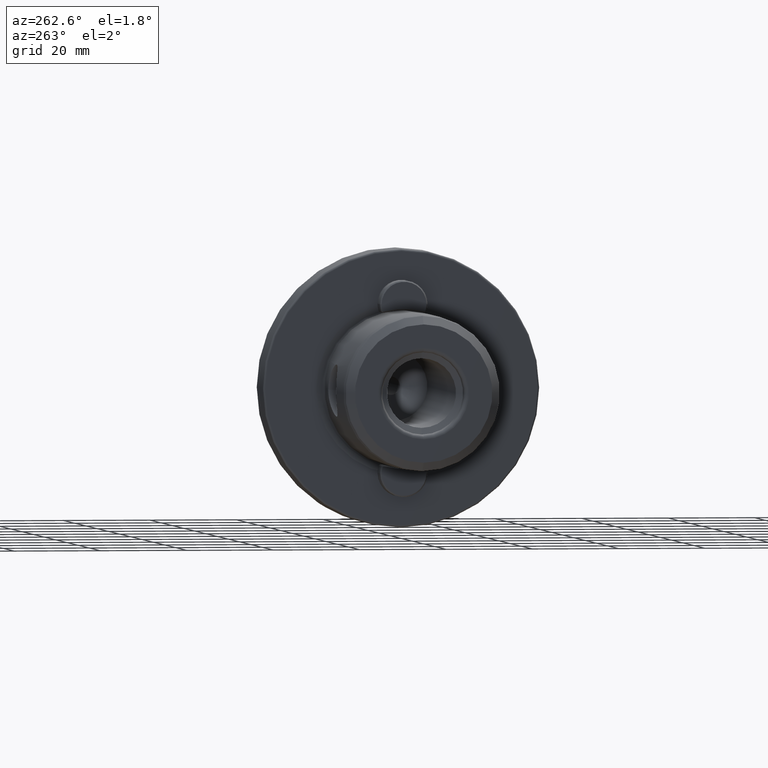
[diagram: clean part render]
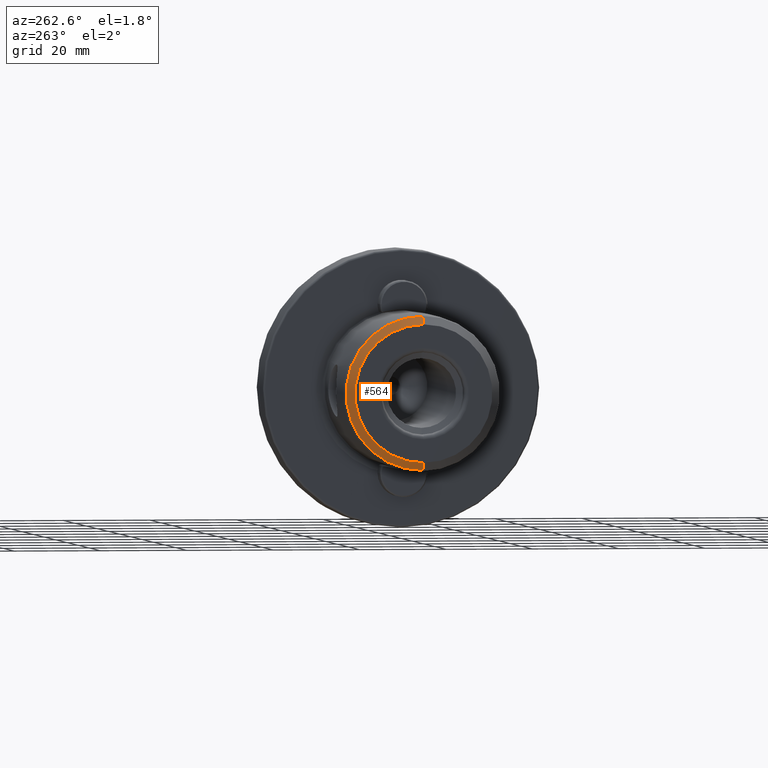
[diagram: same view with one face highlighted and labeled with its STEP entity id]
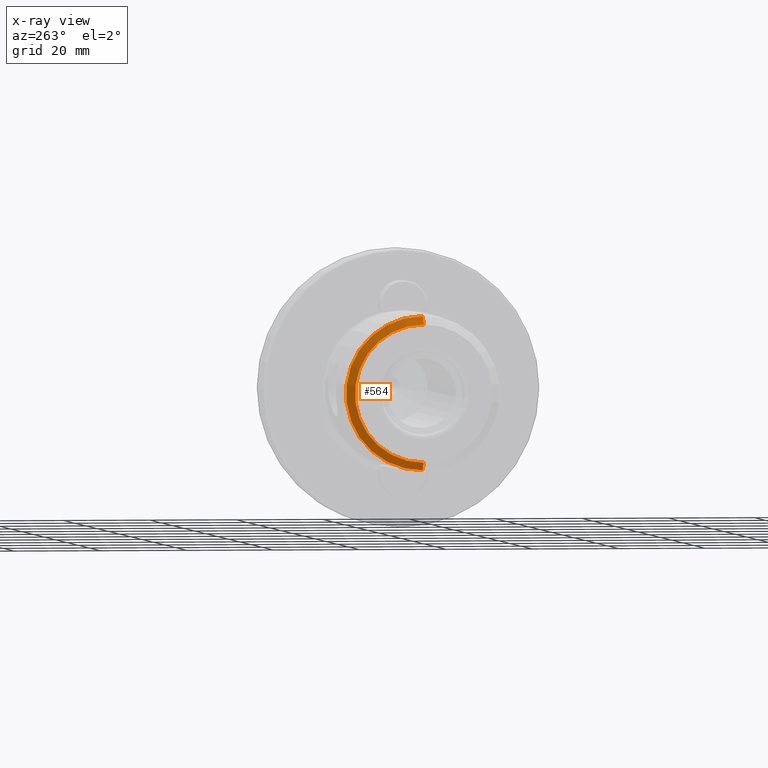
[diagram: x-ray of the same camera — body ghosted, the highlighted face saturated]
A machine part, auxiliary view. The second image highlights one B-rep face of the part: STEP entity #564.
The next image is the same camera in x-ray: the body ghosted, the highlighted face saturated — about 0% of this face is hidden behind the body in this view.
In plain terms, the highlighted conical surface has half-angle 45 deg.
Its self-contained STEP definition (entity closure, byte-faithful):
#110 = EDGE_LOOP ( 'NONE', ( #4138, #3666, #4489, #1928 ) ) ;
#279 = AXIS2_PLACEMENT_3D ( 'NONE', #4274, #4279, #4299 ) ;
#351 = VERTEX_POINT ( 'NONE', #4393 ) ;
#530 = CIRCLE ( 'NONE', #3023, 15.90000000000000400 ) ;
#564 = ADVANCED_FACE ( 'NONE', ( #1338 ), #1077, .T. ) ;
#868 = VERTEX_POINT ( 'NONE', #4571 ) ;
#1077 = CONICAL_SURFACE ( 'NONE', #279, 17.72426406871192500, 0.7853981633974456100 ) ;
#1338 = FACE_OUTER_BOUND ( 'NONE', #110, .T. ) ;
#1344 = CARTESIAN_POINT ( 'NONE',  ( -40.00000000000000000, 0.0000000000000000000, 0.0000000000000000000 ) ) ;
#1381 = DIRECTION ( 'NONE',  ( -1.000000000000000000, -0.0000000000000000000, -0.0000000000000000000 ) ) ;
#1416 = DIRECTION ( 'NONE',  ( 0.0000000000000000000, 0.0000000000000000000, 1.000000000000000000 ) ) ;
#1425 = CARTESIAN_POINT ( 'NONE',  ( -38.17573593128806700, 2.170596325899050300E-015, 17.72426406871192500 ) ) ;
#1481 = DIRECTION ( 'NONE',  ( 0.7071067811865493500, 8.659560562354908200E-017, 0.7071067811865455700 ) ) ;
#1700 = VECTOR ( 'NONE', #4522, 1000.000000000000100 ) ;
#1928 = ORIENTED_EDGE ( 'NONE', *, *, #4940, .F. ) ;
#2070 = LINE ( 'NONE', #4512, #1700 ) ;
#2310 = VERTEX_POINT ( 'NONE', #2484 ) ;
#2484 = CARTESIAN_POINT ( 'NONE',  ( -38.17573593128806700, 2.181357048186405800E-015, -17.72426406871192500 ) ) ;
#2889 = AXIS2_PLACEMENT_3D ( 'NONE', #4216, #4258, #4321 ) ;
#3023 = AXIS2_PLACEMENT_3D ( 'NONE', #1344, #1381, #1416 ) ;
#3666 = ORIENTED_EDGE ( 'NONE', *, *, #4892, .T. ) ;
#4138 = ORIENTED_EDGE ( 'NONE', *, *, #4870, .F. ) ;
#4181 = VECTOR ( 'NONE', #1481, 1000.000000000000100 ) ;
#4216 = CARTESIAN_POINT ( 'NONE',  ( -38.17573593128806700, 0.0000000000000000000, 0.0000000000000000000 ) ) ;
#4258 = DIRECTION ( 'NONE',  ( -1.000000000000000000, -0.0000000000000000000, -0.0000000000000000000 ) ) ;
#4274 = CARTESIAN_POINT ( 'NONE',  ( -38.17573593128806700, 0.0000000000000000000, 0.0000000000000000000 ) ) ;
#4279 = DIRECTION ( 'NONE',  ( 1.000000000000000000, 0.0000000000000000000, 0.0000000000000000000 ) ) ;
#4299 = DIRECTION ( 'NONE',  ( 0.0000000000000000000, 0.0000000000000000000, -1.000000000000000000 ) ) ;
#4321 = DIRECTION ( 'NONE',  ( 0.0000000000000000000, 0.0000000000000000000, 1.000000000000000000 ) ) ;
#4393 = CARTESIAN_POINT ( 'NONE',  ( -40.00000000000000000, 0.0000000000000000000, -15.90000000000000400 ) ) ;
#4428 = VERTEX_POINT ( 'NONE', #5150 ) ;
#4489 = ORIENTED_EDGE ( 'NONE', *, *, #4921, .T. ) ;
#4512 = CARTESIAN_POINT ( 'NONE',  ( -38.17573593128806700, 0.0000000000000000000, -17.72426406871192500 ) ) ;
#4522 = DIRECTION ( 'NONE',  ( 0.7071067811865493500, 0.0000000000000000000, -0.7071067811865455700 ) ) ;
#4571 = CARTESIAN_POINT ( 'NONE',  ( -40.00000000000000000, 2.058892368271671400E-015, 15.90000000000000400 ) ) ;
#4643 = CIRCLE ( 'NONE', #2889, 17.72426406871192500 ) ;
#4689 = LINE ( 'NONE', #1425, #4181 ) ;
#4870 = EDGE_CURVE ( 'NONE', #868, #351, #530, .T. ) ;
#4892 = EDGE_CURVE ( 'NONE', #868, #4428, #4689, .T. ) ;
#4921 = EDGE_CURVE ( 'NONE', #4428, #2310, #4643, .T. ) ;
#4940 = EDGE_CURVE ( 'NONE', #351, #2310, #2070, .T. ) ;
#5150 = CARTESIAN_POINT ( 'NONE',  ( -38.17573593128806700, 0.0000000000000000000, 17.72426406871192500 ) ) ;